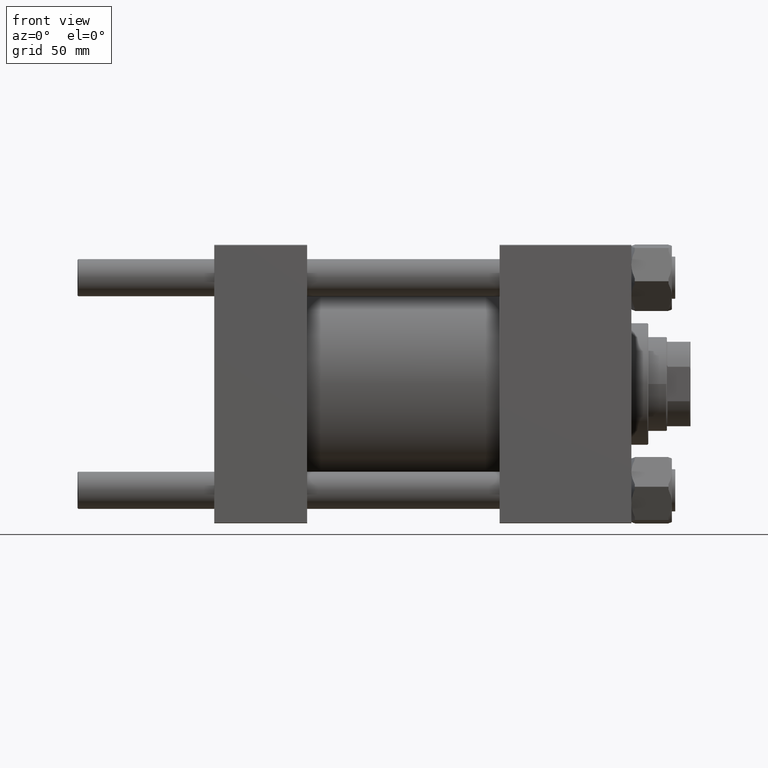
[diagram: clean part render]
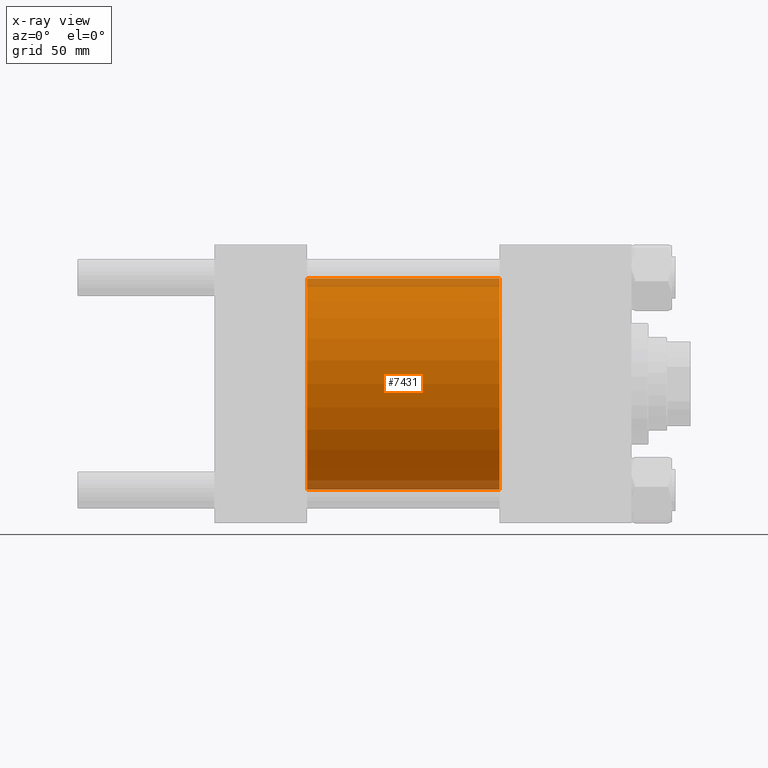
[diagram: x-ray — body ghosted, one internal face saturated and labeled with its STEP entity id]
A machine part, front view, then the same camera in x-ray: the body is ghosted and one INTERNAL B-rep face — a face not visible from any outside direction — is saturated and labeled: STEP entity #7431.
In plain terms, the highlighted cylindrical surface (partial cylindrical patch) has radius 62.5 mm, axis along (-1, -0, -0).
Its self-contained STEP definition (entity closure, byte-faithful):
#3035 = CARTESIAN_POINT ( 'NONE',  ( 169.0000000000000000, 7.654042494670956226E-15, -62.50000000000000000 ) ) ;
#5523 = EDGE_CURVE ( 'NONE', #40549, #33332, #34003, .T. ) ;
#7263 = CIRCLE ( 'NONE', #36631, 62.50000000000000000 ) ;
#7360 = ORIENTED_EDGE ( 'NONE', *, *, #14923, .T. ) ;
#7431 = ADVANCED_FACE ( 'NONE', ( #40047 ), #40783, .F. ) ;
#8903 = CARTESIAN_POINT ( 'NONE',  ( 169.0000000000000000, 0.000000000000000000, 62.50000000000000000 ) ) ;
#10516 = DIRECTION ( 'NONE',  ( 1.000000000000000000, 0.000000000000000000, 0.000000000000000000 ) ) ;
#12192 = CARTESIAN_POINT ( 'NONE',  ( 55.00000000000000000, 0.000000000000000000, 0.000000000000000000 ) ) ;
#12500 = EDGE_CURVE ( 'NONE', #46775, #25120, #22427, .T. ) ;
#13466 = DIRECTION ( 'NONE',  ( -1.000000000000000000, -0.000000000000000000, -0.000000000000000000 ) ) ;
#13936 = ORIENTED_EDGE ( 'NONE', *, *, #5523, .F. ) ;
#14923 = EDGE_CURVE ( 'NONE', #40549, #46775, #7263, .T. ) ;
#17684 = VECTOR ( 'NONE', #33753, 1000.000000000000000 ) ;
#18866 = DIRECTION ( 'NONE',  ( -1.000000000000000000, -0.000000000000000000, -0.000000000000000000 ) ) ;
#19802 = ORIENTED_EDGE ( 'NONE', *, *, #43454, .F. ) ;
#20878 = CARTESIAN_POINT ( 'NONE',  ( 169.0000000000000000, 0.000000000000000000, 0.000000000000000000 ) ) ;
#22427 = LINE ( 'NONE', #3035, #35031 ) ;
#24200 = AXIS2_PLACEMENT_3D ( 'NONE', #12192, #27508, #39255 ) ;
#25120 = VERTEX_POINT ( 'NONE', #27662 ) ;
#25814 = EDGE_LOOP ( 'NONE', ( #7360, #28047, #19802, #13936 ) ) ;
#26875 = CARTESIAN_POINT ( 'NONE',  ( 169.0000000000000000, 7.654042494670956226E-15, -62.50000000000000000 ) ) ;
#27508 = DIRECTION ( 'NONE',  ( 1.000000000000000000, 0.000000000000000000, 0.000000000000000000 ) ) ;
#27662 = CARTESIAN_POINT ( 'NONE',  ( 55.00000000000000000, 7.654042494670956226E-15, -62.50000000000000000 ) ) ;
#28047 = ORIENTED_EDGE ( 'NONE', *, *, #12500, .T. ) ;
#31947 = CARTESIAN_POINT ( 'NONE',  ( 55.00000000000000000, 0.000000000000000000, 62.50000000000000000 ) ) ;
#32136 = DIRECTION ( 'NONE',  ( 0.000000000000000000, 0.000000000000000000, 1.000000000000000000 ) ) ;
#33332 = VERTEX_POINT ( 'NONE', #31947 ) ;
#33753 = DIRECTION ( 'NONE',  ( -1.000000000000000000, -0.000000000000000000, -0.000000000000000000 ) ) ;
#34003 = LINE ( 'NONE', #38103, #17684 ) ;
#35031 = VECTOR ( 'NONE', #18866, 1000.000000000000000 ) ;
#35647 = CIRCLE ( 'NONE', #24200, 62.50000000000000000 ) ;
#36631 = AXIS2_PLACEMENT_3D ( 'NONE', #45474, #10516, #36824 ) ;
#36824 = DIRECTION ( 'NONE',  ( 0.000000000000000000, 0.000000000000000000, -1.000000000000000000 ) ) ;
#37319 = AXIS2_PLACEMENT_3D ( 'NONE', #20878, #13466, #32136 ) ;
#38103 = CARTESIAN_POINT ( 'NONE',  ( 169.0000000000000000, 0.000000000000000000, 62.50000000000000000 ) ) ;
#39255 = DIRECTION ( 'NONE',  ( 0.000000000000000000, 0.000000000000000000, -1.000000000000000000 ) ) ;
#40047 = FACE_OUTER_BOUND ( 'NONE', #25814, .T. ) ;
#40549 = VERTEX_POINT ( 'NONE', #8903 ) ;
#40783 = CYLINDRICAL_SURFACE ( 'NONE', #37319, 62.50000000000000000 ) ;
#43454 = EDGE_CURVE ( 'NONE', #33332, #25120, #35647, .T. ) ;
#45474 = CARTESIAN_POINT ( 'NONE',  ( 169.0000000000000000, 0.000000000000000000, 0.000000000000000000 ) ) ;
#46775 = VERTEX_POINT ( 'NONE', #26875 ) ;